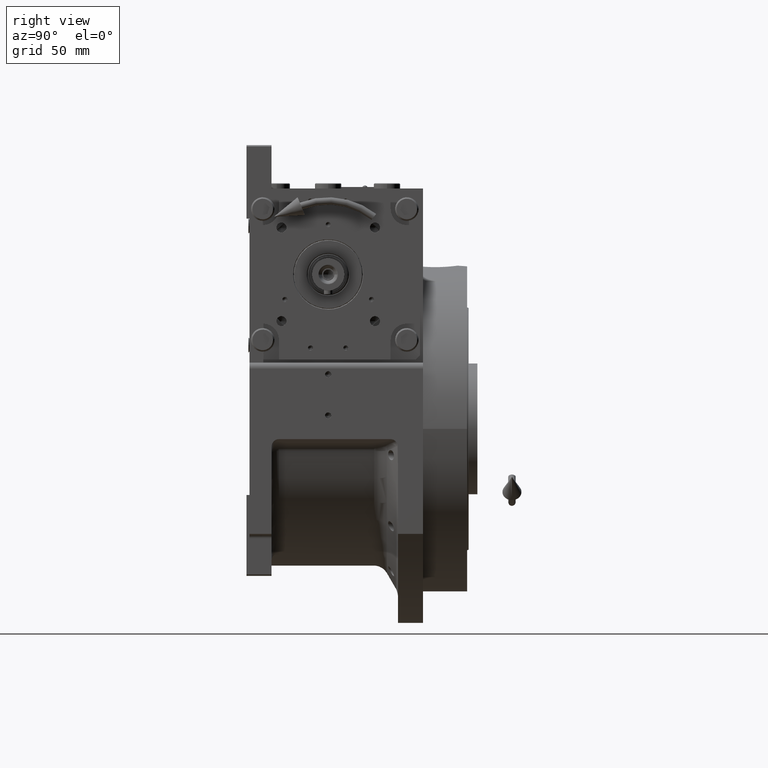
[diagram: clean part render]
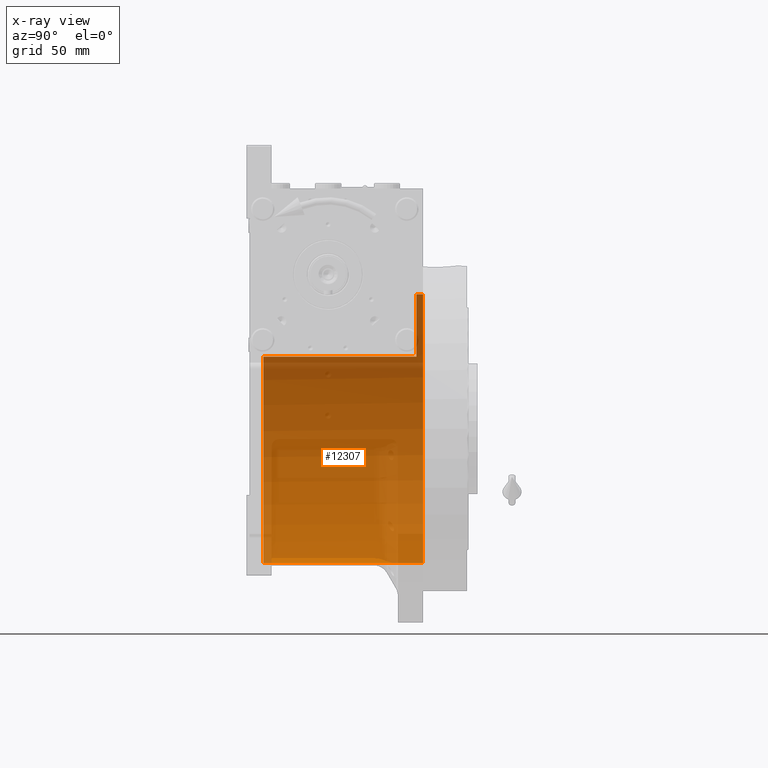
[diagram: x-ray — body ghosted, one internal face saturated and labeled with its STEP entity id]
A machine part, right view, then the same camera in x-ray: the body is ghosted and one INTERNAL B-rep face — a face not visible from any outside direction — is saturated and labeled: STEP entity #12307.
In plain terms, the highlighted cylindrical surface (partial cylindrical patch) has radius 91.5 mm, axis along (0, -1, 0).
Its self-contained STEP definition (entity closure, byte-faithful):
#500 = VERTEX_POINT ( 'NONE', #28964 ) ;
#544 = VERTEX_POINT ( 'NONE', #66149 ) ;
#2406 = DIRECTION ( 'NONE',  ( 0.000000000000000000, -1.000000000000000000, 0.000000000000000000 ) ) ;
#3382 = CARTESIAN_POINT ( 'NONE',  ( 0.000000000000000000, 69.00000000000004263, -91.50000000000000000 ) ) ;
#3743 = CYLINDRICAL_SURFACE ( 'NONE', #36860, 91.50000000000000000 ) ;
#5064 = EDGE_CURVE ( 'NONE', #47117, #28514, #24146, .T. ) ;
#5240 = CARTESIAN_POINT ( 'NONE',  ( 0.000000000000000000, -44.00000000000000000, 0.000000000000000000 ) ) ;
#6853 = EDGE_LOOP ( 'NONE', ( #64115, #9991, #35883, #11257, #46575, #12587 ) ) ;
#7764 = EDGE_CURVE ( 'NONE', #19246, #57849, #19360, .T. ) ;
#8387 = CARTESIAN_POINT ( 'NONE',  ( 0.000000000000000000, 64.50000000000000000, -91.50000000000000000 ) ) ;
#8601 = EDGE_CURVE ( 'NONE', #28514, #500, #65666, .T. ) ;
#8975 = DIRECTION ( 'NONE',  ( -0.000000000000000000, -1.000000000000000000, -0.000000000000000000 ) ) ;
#9991 = ORIENTED_EDGE ( 'NONE', *, *, #67695, .T. ) ;
#11257 = ORIENTED_EDGE ( 'NONE', *, *, #5064, .F. ) ;
#12307 = ADVANCED_FACE ( 'NONE', ( #39263 ), #3743, .F. ) ;
#12587 = ORIENTED_EDGE ( 'NONE', *, *, #64096, .F. ) ;
#13739 = CARTESIAN_POINT ( 'NONE',  ( 0.000000000000000000, 69.00000000000004263, 0.000000000000000000 ) ) ;
#18337 = CARTESIAN_POINT ( 'NONE',  ( 0.000000000000000000, 64.50000000000000000, 0.000000000000000000 ) ) ;
#19246 = VERTEX_POINT ( 'NONE', #38151 ) ;
#19360 = CIRCLE ( 'NONE', #57869, 91.50000000000000000 ) ;
#20412 = DIRECTION ( 'NONE',  ( 0.000000000000000000, 0.000000000000000000, 1.000000000000000000 ) ) ;
#20455 = CARTESIAN_POINT ( 'NONE',  ( 1.120551821219827868E-14, 69.00000000000004263, 91.50000000000000000 ) ) ;
#21740 = AXIS2_PLACEMENT_3D ( 'NONE', #5240, #56928, #20412 ) ;
#24146 = LINE ( 'NONE', #24815, #60645 ) ;
#24815 = CARTESIAN_POINT ( 'NONE',  ( -77.27386362800812947, 69.00000000000004263, 48.99999999999998579 ) ) ;
#27148 = CARTESIAN_POINT ( 'NONE',  ( 0.000000000000000000, 60.00000000000000000, 0.000000000000000000 ) ) ;
#27249 = CIRCLE ( 'NONE', #21740, 91.50000000000000000 ) ;
#28514 = VERTEX_POINT ( 'NONE', #46328 ) ;
#28884 = LINE ( 'NONE', #3382, #61990 ) ;
#28964 = CARTESIAN_POINT ( 'NONE',  ( 1.120551821219827868E-14, 60.00000000000000000, 91.50000000000000000 ) ) ;
#34767 = DIRECTION ( 'NONE',  ( 0.000000000000000000, 0.000000000000000000, -1.000000000000000000 ) ) ;
#35883 = ORIENTED_EDGE ( 'NONE', *, *, #8601, .F. ) ;
#36860 = AXIS2_PLACEMENT_3D ( 'NONE', #13739, #2406, #34767 ) ;
#38151 = CARTESIAN_POINT ( 'NONE',  ( 1.120551821219827868E-14, 64.50000000000000000, 91.50000000000000000 ) ) ;
#39263 = FACE_OUTER_BOUND ( 'NONE', #6853, .T. ) ;
#39685 = DIRECTION ( 'NONE',  ( 0.000000000000000000, 0.000000000000000000, 1.000000000000000000 ) ) ;
#41475 = VECTOR ( 'NONE', #57311, 1000.000000000000000 ) ;
#43689 = DIRECTION ( 'NONE',  ( 0.000000000000000000, 1.000000000000000000, 0.000000000000000000 ) ) ;
#45851 = AXIS2_PLACEMENT_3D ( 'NONE', #27148, #43689, #47472 ) ;
#46328 = CARTESIAN_POINT ( 'NONE',  ( -77.27386362800814368, 60.00000000000000000, 48.99999999999998579 ) ) ;
#46575 = ORIENTED_EDGE ( 'NONE', *, *, #48517, .F. ) ;
#47117 = VERTEX_POINT ( 'NONE', #53860 ) ;
#47472 = DIRECTION ( 'NONE',  ( 1.776356839400250465E-15, 0.000000000000000000, -1.000000000000000000 ) ) ;
#48517 = EDGE_CURVE ( 'NONE', #544, #47117, #27249, .T. ) ;
#51787 = LINE ( 'NONE', #20455, #41475 ) ;
#53860 = CARTESIAN_POINT ( 'NONE',  ( -77.27386362800814368, -44.00000000000000000, 49.00000000000000000 ) ) ;
#56928 = DIRECTION ( 'NONE',  ( 0.000000000000000000, 1.000000000000000000, 0.000000000000000000 ) ) ;
#57311 = DIRECTION ( 'NONE',  ( 0.000000000000000000, -1.000000000000000000, 0.000000000000000000 ) ) ;
#57849 = VERTEX_POINT ( 'NONE', #8387 ) ;
#57869 = AXIS2_PLACEMENT_3D ( 'NONE', #18337, #8975, #39685 ) ;
#60645 = VECTOR ( 'NONE', #61018, 1000.000000000000000 ) ;
#61018 = DIRECTION ( 'NONE',  ( -0.000000000000000000, 1.000000000000000000, -0.000000000000000000 ) ) ;
#61990 = VECTOR ( 'NONE', #65736, 1000.000000000000000 ) ;
#64096 = EDGE_CURVE ( 'NONE', #57849, #544, #28884, .T. ) ;
#64115 = ORIENTED_EDGE ( 'NONE', *, *, #7764, .F. ) ;
#65666 = CIRCLE ( 'NONE', #45851, 91.50000000000000000 ) ;
#65736 = DIRECTION ( 'NONE',  ( 0.000000000000000000, -1.000000000000000000, 0.000000000000000000 ) ) ;
#66149 = CARTESIAN_POINT ( 'NONE',  ( 0.000000000000000000, -44.00000000000000000, -91.50000000000000000 ) ) ;
#67695 = EDGE_CURVE ( 'NONE', #19246, #500, #51787, .T. ) ;